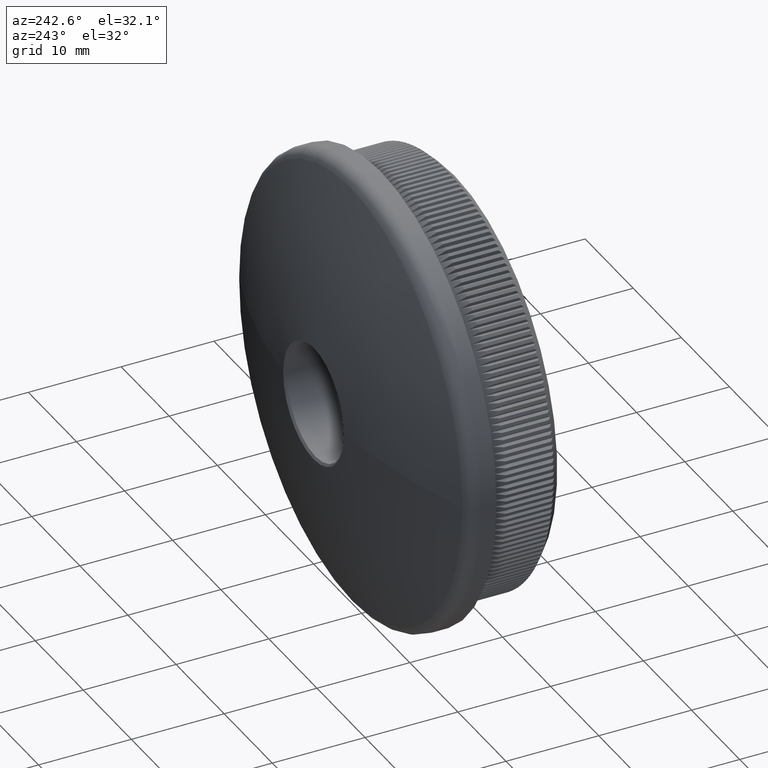
[diagram: clean part render]
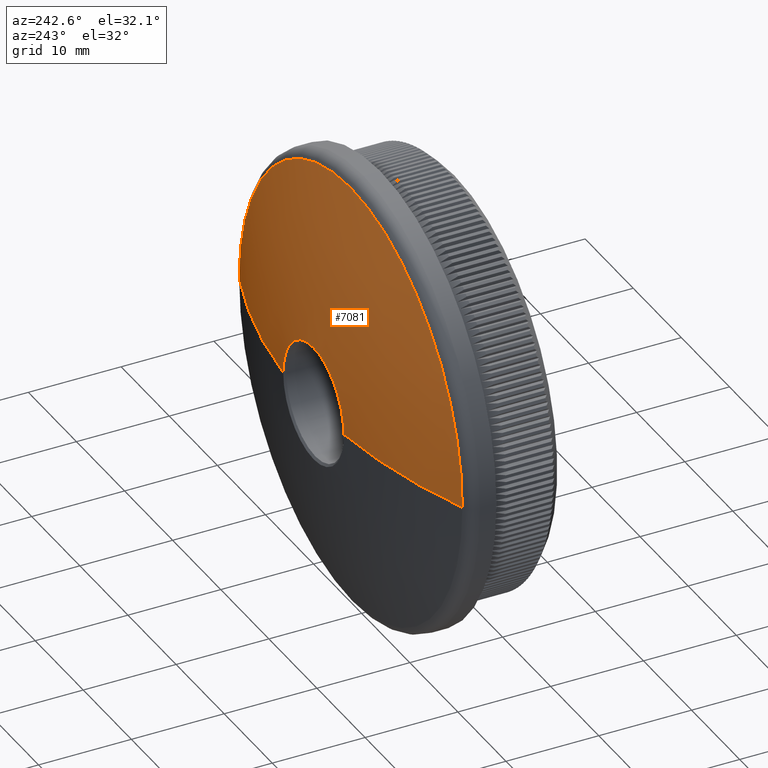
[diagram: same view with one face highlighted and labeled with its STEP entity id]
A machine part, auxiliary view. The second image highlights one B-rep face of the part: STEP entity #7081.
In plain terms, the highlighted spherical surface has radius 64.3949 mm.
Its self-contained STEP definition (entity closure, byte-faithful):
#7 = AXIS2_PLACEMENT_3D ( 'NONE', #28083, #7049, #6707 ) ;
#101 = CIRCLE ( 'NONE', #14566, 6.298367501959309500 ) ;
#1582 = CIRCLE ( 'NONE', #27577, 23.19018648117216600 ) ;
#2376 = EDGE_LOOP ( 'NONE', ( #27054, #7879, #5589, #23948, #33530, #23968 ) ) ;
#2876 = CARTESIAN_POINT ( 'NONE',  ( 6.298367501959309500, 15.19124313348215000, 0.0000000000000000000 ) ) ;
#3135 = EDGE_CURVE ( 'NONE', #5061, #19731, #1582, .T. ) ;
#3166 = CARTESIAN_POINT ( 'NONE',  ( 0.0000000000000000000, 15.19124313348215000, 6.298367501959327300 ) ) ;
#3533 = CARTESIAN_POINT ( 'NONE',  ( 2.898750392260314800E-015, 11.17937736945556700, 23.19018648117216600 ) ) ;
#3736 = CARTESIAN_POINT ( 'NONE',  ( -6.298367501959309500, 15.19124313348215000, 1.805653162346294700E-015 ) ) ;
#3787 = VERTEX_POINT ( 'NONE', #3166 ) ;
#5061 = VERTEX_POINT ( 'NONE', #16729 ) ;
#5589 = ORIENTED_EDGE ( 'NONE', *, *, #26365, .T. ) ;
#6707 = DIRECTION ( 'NONE',  ( 1.000000000000000000, 0.0000000000000000000, -1.224646799147353200E-016 ) ) ;
#7049 = DIRECTION ( 'NONE',  ( 1.224646799147353200E-016, -0.0000000000000000000, 1.000000000000000000 ) ) ;
#7081 = ADVANCED_FACE ( 'NONE', ( #20945 ), #21775, .T. ) ;
#7141 = DIRECTION ( 'NONE',  ( 0.0000000000000000000, 0.0000000000000000000, -1.000000000000000000 ) ) ;
#7820 = EDGE_CURVE ( 'NONE', #19731, #29290, #30881, .T. ) ;
#7879 = ORIENTED_EDGE ( 'NONE', *, *, #17497, .T. ) ;
#10353 = EDGE_CURVE ( 'NONE', #24701, #29290, #13383, .T. ) ;
#10599 = DIRECTION ( 'NONE',  ( 0.0000000000000000000, 0.0000000000000000000, -1.000000000000000000 ) ) ;
#12211 = DIRECTION ( 'NONE',  ( 0.0000000000000000000, 1.000000000000000000, 0.0000000000000000000 ) ) ;
#13038 = VERTEX_POINT ( 'NONE', #3736 ) ;
#13061 = CARTESIAN_POINT ( 'NONE',  ( 0.0000000000000000000, -48.89494680851073800, 0.0000000000000000000 ) ) ;
#13383 = CIRCLE ( 'NONE', #23218, 64.39494680851073800 ) ;
#14126 = CARTESIAN_POINT ( 'NONE',  ( 0.0000000000000000000, -48.89494680851073800, 0.0000000000000000000 ) ) ;
#14515 = AXIS2_PLACEMENT_3D ( 'NONE', #13061, #26190, #31669 ) ;
#14566 = AXIS2_PLACEMENT_3D ( 'NONE', #31110, #33748, #7141 ) ;
#14809 = DIRECTION ( 'NONE',  ( 0.0000000000000000000, 1.000000000000000000, 0.0000000000000000000 ) ) ;
#15224 = EDGE_CURVE ( 'NONE', #24701, #3787, #21421, .T. ) ;
#16717 = CIRCLE ( 'NONE', #7, 64.39494680851073800 ) ;
#16729 = CARTESIAN_POINT ( 'NONE',  ( -23.19018648117216600, 11.17937736945556400, 2.839978764579771300E-015 ) ) ;
#16810 = DIRECTION ( 'NONE',  ( 0.0000000000000000000, 0.0000000000000000000, -1.000000000000000000 ) ) ;
#17497 = EDGE_CURVE ( 'NONE', #3787, #13038, #101, .T. ) ;
#19731 = VERTEX_POINT ( 'NONE', #3533 ) ;
#20106 = CARTESIAN_POINT ( 'NONE',  ( 0.0000000000000000000, 11.17937736945556700, 0.0000000000000000000 ) ) ;
#20945 = FACE_OUTER_BOUND ( 'NONE', #2376, .T. ) ;
#21421 = CIRCLE ( 'NONE', #25855, 6.298367501959309500 ) ;
#21775 = SPHERICAL_SURFACE ( 'NONE', #14515, 64.39494680851073800 ) ;
#22562 = AXIS2_PLACEMENT_3D ( 'NONE', #30736, #14809, #28397 ) ;
#23218 = AXIS2_PLACEMENT_3D ( 'NONE', #14126, #16810, #27692 ) ;
#23576 = CARTESIAN_POINT ( 'NONE',  ( 23.19018648117216600, 11.17937736945556400, 0.0000000000000000000 ) ) ;
#23948 = ORIENTED_EDGE ( 'NONE', *, *, #3135, .T. ) ;
#23968 = ORIENTED_EDGE ( 'NONE', *, *, #10353, .F. ) ;
#24701 = VERTEX_POINT ( 'NONE', #2876 ) ;
#25855 = AXIS2_PLACEMENT_3D ( 'NONE', #31880, #31654, #10599 ) ;
#26190 = DIRECTION ( 'NONE',  ( 0.0000000000000000000, 0.0000000000000000000, 1.000000000000000000 ) ) ;
#26365 = EDGE_CURVE ( 'NONE', #13038, #5061, #16717, .T. ) ;
#27054 = ORIENTED_EDGE ( 'NONE', *, *, #15224, .T. ) ;
#27577 = AXIS2_PLACEMENT_3D ( 'NONE', #20106, #12211, #33117 ) ;
#27692 = DIRECTION ( 'NONE',  ( -1.000000000000000000, 0.0000000000000000000, 0.0000000000000000000 ) ) ;
#28083 = CARTESIAN_POINT ( 'NONE',  ( 0.0000000000000000000, -48.89494680851073800, 0.0000000000000000000 ) ) ;
#28397 = DIRECTION ( 'NONE',  ( 0.0000000000000000000, 0.0000000000000000000, -1.000000000000000000 ) ) ;
#29290 = VERTEX_POINT ( 'NONE', #23576 ) ;
#30736 = CARTESIAN_POINT ( 'NONE',  ( 0.0000000000000000000, 11.17937736945556700, 0.0000000000000000000 ) ) ;
#30881 = CIRCLE ( 'NONE', #22562, 23.19018648117216600 ) ;
#31110 = CARTESIAN_POINT ( 'NONE',  ( 0.0000000000000000000, 15.19124313348215000, 0.0000000000000000000 ) ) ;
#31654 = DIRECTION ( 'NONE',  ( -0.0000000000000000000, -1.000000000000000000, -0.0000000000000000000 ) ) ;
#31669 = DIRECTION ( 'NONE',  ( 1.000000000000000000, 0.0000000000000000000, 0.0000000000000000000 ) ) ;
#31880 = CARTESIAN_POINT ( 'NONE',  ( 0.0000000000000000000, 15.19124313348215000, 0.0000000000000000000 ) ) ;
#33117 = DIRECTION ( 'NONE',  ( 0.0000000000000000000, 0.0000000000000000000, -1.000000000000000000 ) ) ;
#33530 = ORIENTED_EDGE ( 'NONE', *, *, #7820, .T. ) ;
#33748 = DIRECTION ( 'NONE',  ( -0.0000000000000000000, -1.000000000000000000, -0.0000000000000000000 ) ) ;